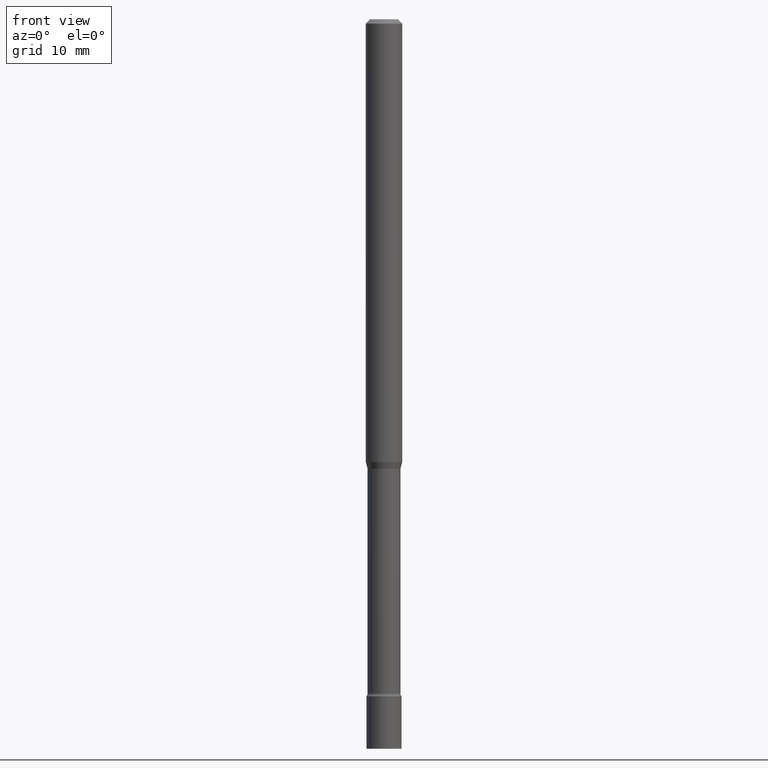
[diagram: clean part render]
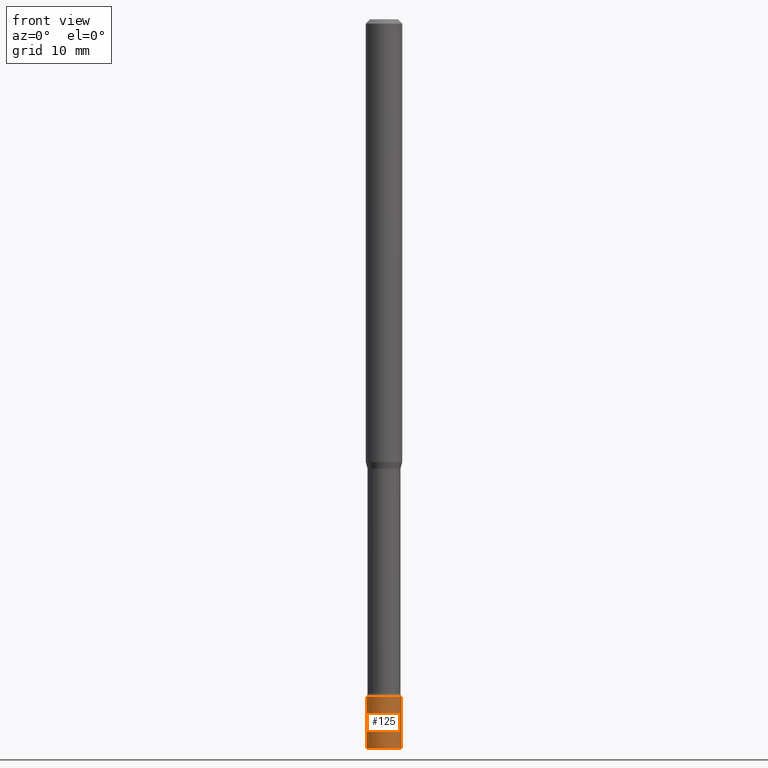
[diagram: same view with one face highlighted and labeled with its STEP entity id]
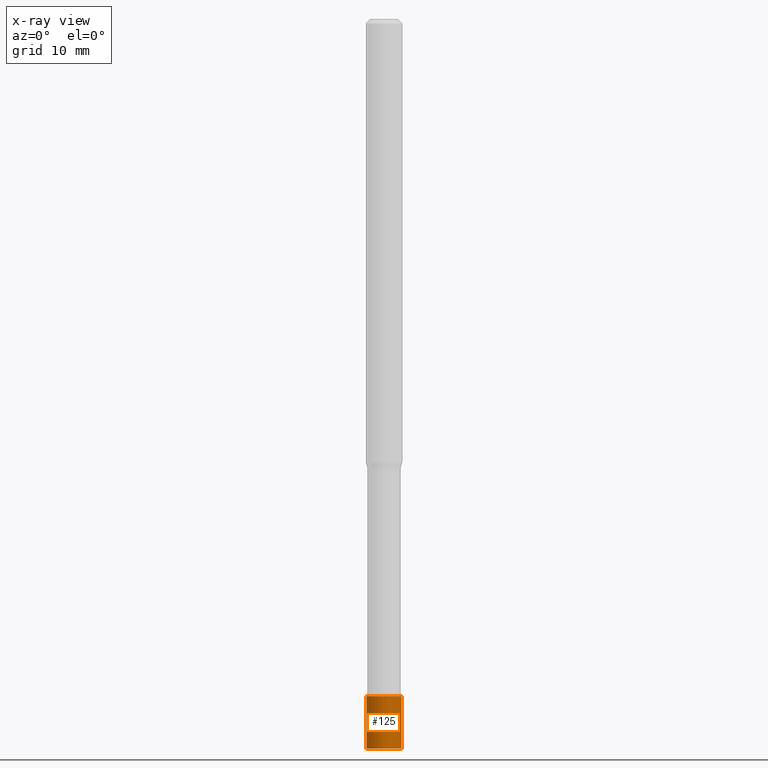
[diagram: x-ray of the same camera — body ghosted, the highlighted face saturated]
A machine part, front view. The second image highlights one B-rep face of the part: STEP entity #125.
The next image is the same camera in x-ray: the body ghosted, the highlighted face saturated — about 0% of this face is hidden behind the body in this view.
In plain terms, the highlighted cylindrical surface (edge-blend (fillet) strip) has radius 1.524 mm, axis along (-0, 0, 1).
Its self-contained STEP definition (entity closure, byte-faithful):
#1 = EDGE_CURVE ( 'NONE', #126, #133, #448, .T. ) ;
#20 = CARTESIAN_POINT ( 'NONE',  ( 6.113672015462842613E-29, -8.728703347107864943E-15, -2.500000000000000000 ) ) ;
#44 = VECTOR ( 'NONE', #245, 39.37007874015748143 ) ;
#63 = CARTESIAN_POINT ( 'NONE',  ( -0.05999999999999999778, -7.988144385155922766E-15, -2.320000000000000284 ) ) ;
#77 = CARTESIAN_POINT ( 'NONE',  ( 0.05999999999999999778, -4.189777606611760421E-16, 2.925706065477561756E-30 ) ) ;
#83 = LINE ( 'NONE', #367, #442 ) ;
#85 = CYLINDRICAL_SURFACE ( 'NONE', #465, 0.05999999999999999778 ) ;
#108 = EDGE_LOOP ( 'NONE', ( #294, #277, #486, #384 ) ) ;
#125 = ADVANCED_FACE ( 'NONE', ( #366 ), #85, .T. ) ;
#126 = VERTEX_POINT ( 'NONE', #329 ) ;
#133 = VERTEX_POINT ( 'NONE', #410 ) ;
#146 = EDGE_CURVE ( 'NONE', #217, #266, #83, .T. ) ;
#150 = CARTESIAN_POINT ( 'NONE',  ( 5.673487630349517039E-29, -8.100236706116099992E-15, -2.320000000000000284 ) ) ;
#161 = DIRECTION ( 'NONE',  ( 1.000000000000000000, -6.982962677686267499E-15, 4.876176775795936353E-29 ) ) ;
#179 = CIRCLE ( 'NONE', #388, 0.05999999999999999778 ) ;
#195 = CIRCLE ( 'NONE', #420, 0.05999999999999999778 ) ;
#209 = EDGE_CURVE ( 'NONE', #217, #126, #179, .T. ) ;
#217 = VERTEX_POINT ( 'NONE', #267 ) ;
#240 = DIRECTION ( 'NONE',  ( -2.445468806185136597E-29, 3.491481338843145583E-15, 1.000000000000000000 ) ) ;
#245 = DIRECTION ( 'NONE',  ( -2.445468806185136877E-29, 3.491481338843145188E-15, 1.000000000000000000 ) ) ;
#266 = VERTEX_POINT ( 'NONE', #63 ) ;
#267 = CARTESIAN_POINT ( 'NONE',  ( -0.05999999999999999778, -7.988144385155922766E-15, -2.500000000000000000 ) ) ;
#277 = ORIENTED_EDGE ( 'NONE', *, *, #209, .T. ) ;
#294 = ORIENTED_EDGE ( 'NONE', *, *, #146, .F. ) ;
#329 = CARTESIAN_POINT ( 'NONE',  ( 0.05999999999999999778, -9.147681107769039999E-15, -2.500000000000000000 ) ) ;
#353 = DIRECTION ( 'NONE',  ( -2.445468806185136597E-29, 3.491481338843145583E-15, 1.000000000000000000 ) ) ;
#360 = EDGE_CURVE ( 'NONE', #266, #133, #195, .T. ) ;
#366 = FACE_OUTER_BOUND ( 'NONE', #108, .T. ) ;
#367 = CARTESIAN_POINT ( 'NONE',  ( -0.05999999999999999778, 4.263256414560600957E-16, -2.951361054152943413E-30 ) ) ;
#369 = DIRECTION ( 'NONE',  ( -2.445468806185136877E-29, 3.491481338843145188E-15, 1.000000000000000000 ) ) ;
#384 = ORIENTED_EDGE ( 'NONE', *, *, #360, .F. ) ;
#388 = AXIS2_PLACEMENT_3D ( 'NONE', #20, #353, #508 ) ;
#410 = CARTESIAN_POINT ( 'NONE',  ( 0.05999999999999999778, -8.519214466777275048E-15, -2.320000000000000284 ) ) ;
#420 = AXIS2_PLACEMENT_3D ( 'NONE', #150, #240, #507 ) ;
#442 = VECTOR ( 'NONE', #369, 39.37007874015748143 ) ;
#448 = LINE ( 'NONE', #77, #44 ) ;
#449 = DIRECTION ( 'NONE',  ( -2.445468806185136597E-29, 3.491481338843145583E-15, 1.000000000000000000 ) ) ;
#465 = AXIS2_PLACEMENT_3D ( 'NONE', #520, #449, #161 ) ;
#486 = ORIENTED_EDGE ( 'NONE', *, *, #1, .T. ) ;
#507 = DIRECTION ( 'NONE',  ( 1.000000000000000000, -6.982962677686268288E-15, 0.000000000000000000 ) ) ;
#508 = DIRECTION ( 'NONE',  ( 1.000000000000000000, -6.982962677686251722E-15, 0.000000000000000000 ) ) ;
#520 = CARTESIAN_POINT ( 'NONE',  ( 0.000000000000000000, 0.000000000000000000, 0.000000000000000000 ) ) ;